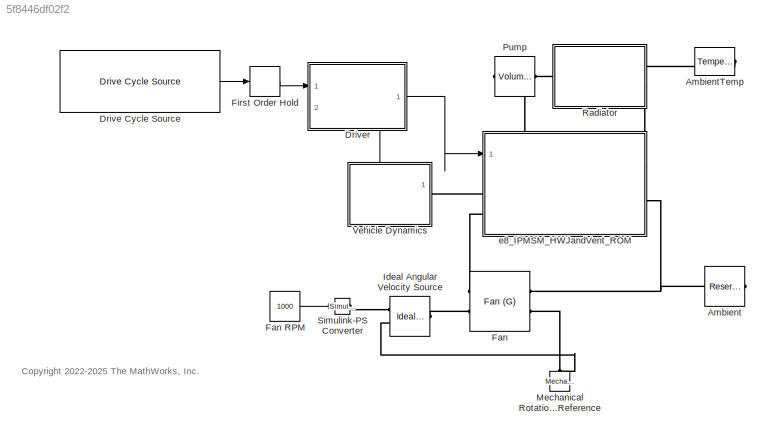
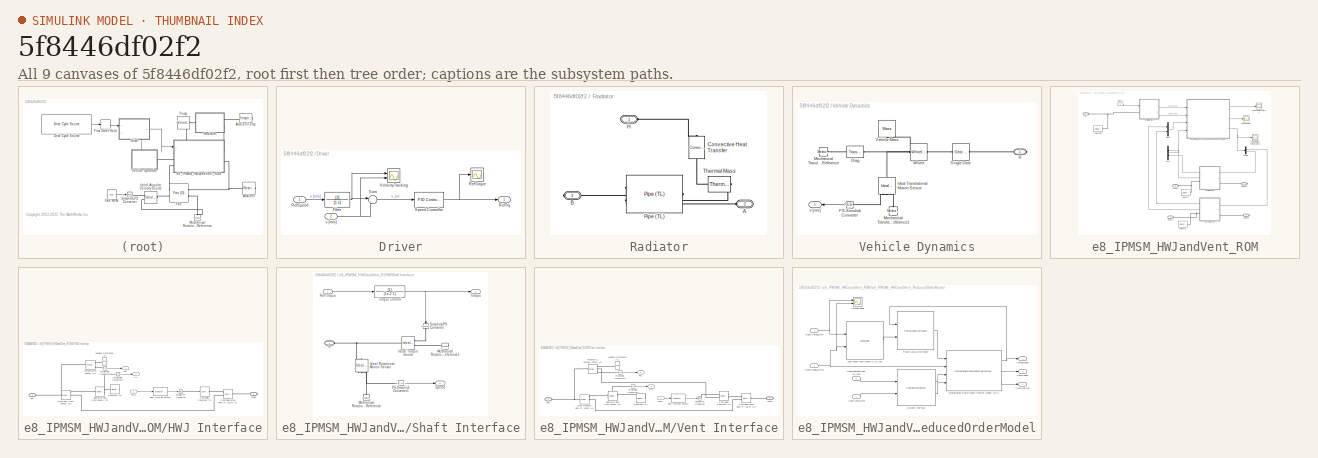
[diagram: thumbnail index - all 9 canvases of the model, root first then tree order]
MODEL slx_5f8446df02f2
KIND model
CONFIG AbsTol = 1e-3
CONFIG EnableMultiTasking = off
CONFIG FixedStep = 1
CONFIG MaxStep = auto
CONFIG MinStep = auto
CONFIG RelTol = 1e-3
CONFIG SampleTimeConstraint = Unconstrained
CONFIG SolverName = VariableStepAuto
CONFIG StartTime = 0.0
CONFIG StopTime = 300
WORKSPACE source: mxarray member
WORKSPACE AdjacencyMat = [0 0 0 0 0 0 0 0 0 0 0 0 ... (15129 elements, 123x123)]
WORKSPACE Banding_Loss_Mat = [0 0 0 0 0 0 0 0 0 0 0 0 ... (2340 elements, 39x60)]
WORKSPACE CapMat = [1e+20 2196.70091586 387.653102799 193.8265514 1962.34710525 387.653102799 193.8265514 1962.34710525 1266.59353814 268.053957132 416.539515956 175.715078 ... (123 elements, 123x1)]
WORKSPACE CoolantArrayIdxs = [20 21 22 23 24 25 26 27 35 36 37 84 ... (19 elements, 19x1)]
WORKSPACE Friction_Loss_Mat = [0 0 0 0 0 0 0 0 0 0 0 0 ... (2340 elements, 39x60)]
WORKSPACE InletCoolIdxs = [37 38]
WORKSPACE Iron_Loss_Rotor_Back_Iron_Mat = [0.0117705351991 0.0198175800092 0.0246057415963 0.0256631766661 0.0240576767285 0.0207771722396 0.0168311502834 0.0133395315761 0.0115512538142 0.0120779594768 0.0143067244555 0.0171516443454 ... (2340 elements, 39x60)]
WORKSPACE Iron_Loss_Rotor_Pole_Mat = [1.45649756865 1.4525095653 1.42942652973 1.39109338754 1.34251579982 1.287439524 1.22885659237 1.16930852698 1.11098913093 1.05484056893 0.999976048068 0.944563732162 ... (2340 elements, 39x60)]
WORKSPACE Iron_Loss_Rotor_Tooth_Mat = [0 0 0 0 0 0 0 0 0 0 0 0 ... (2340 elements, 39x60)]
WORKSPACE Iron_Loss_Stator_Back_Iron_Mat = [38.5419456951 37.774471759 36.7837540443 35.6885758764 34.5272571596 33.3324529178 32.136302555 30.9744032473 29.8863157372 28.879068819 27.8876078248 26.8074662049 ... (2340 elements, 39x60)]
WORKSPACE Iron_Loss_Stator_Tooth_Mat = [42.0610884508 41.0604961882 40.1804594162 39.4285940164 38.704339026 37.9602455604 37.1844153901 36.3902226975 35.6050857317 34.8287245624 34.0007237876 33.0439458619 ... (2340 elements, 39x60)]
WORKSPACE LossDistrForEachType = [0 0 0 0 0 0 0 0 0 0 0 0 ... (2952 elements, 24x123)]
WORKSPACE Magnet_Loss_Mat = [0.0995193918038 0.0928899922278 0.0868628846748 0.0818830115456 0.0774722500184 0.0732395922727 0.0687988836096 0.0636930921801 0.057350395967 0.049600030094 0.0410757744075 0.0326817704515 ... (2340 elements, 39x60)]
WORKSPACE OutletCoolIdxs = [20 107]
WORKSPACE ResMat = [0 2.49009256841 6.64572241429 1000000000 1.39790968864 6.64402802995 1000000000 1.39156082742 1000000000 1000000000 1000000000 1000000000 ... (15129 elements, 123x123)]
WORKSPACE RotorCopperTempCoefResistivity = 0.00393
WORKSPACE Rotor_Cage_Loss_Mat = [0 0 0 0 0 0 0 0 0 0 0 0 ... (2340 elements, 39x60)]
WORKSPACE ShaftTorqueVec = [-287.262157301 -272.268610731 -257.275064161 -242.281517591 -227.287971021 -212.294424451 -197.300877881 -182.307331311 -167.31378474 -152.32023817 -137.3266916 -122.33314503 ... (39 elements, 1x39)]
WORKSPACE Sleeve_Loss_Mat = [0 0 0 0 0 0 0 0 0 0 0 0 ... (2340 elements, 39x60)]
WORKSPACE SpeedVec = [500 661.016949153 822.033898305 983.050847458 1144.06779661 1305.08474576 1466.10169492 1627.11864407 1788.13559322 1949.15254237 2110.16949153 2271.18644068 ... (60 elements, 1x60)]
WORKSPACE StateSpaceND: object (value not decoded)
WORKSPACE StatorCopperTempCoefResistivity = 0.00393
WORKSPACE Stator_Copper_Loss_AC_Mat = [0 0 0 0 0 0 0 0 0 0 0 0 ... (2340 elements, 39x60)]
WORKSPACE Stator_Copper_Loss_Mat = [3925.33912093 3510.19452231 3089.33767218 2711.80000483 2370.99356953 2062.06508217 1781.35176729 1526.02799256 1293.87708107 1083.15658151 892.545254302 720.809889245 ... (2340 elements, 39x60)]
WORKSPACE Stray_Load_Loss_Mat = [0 0 0 0 0 0 0 0 0 0 0 0 ... (2340 elements, 39x60)]
WORKSPACE Stray_Loss_Stator_Iron_Proportion = 0.95
WORKSPACE Tgiven = 20
WORKSPACE TnodesInit = [25 25 25 25 25 25 25 25 25 25 25 25 ... (123 elements, 123x1)]
WORKSPACE TrefRotor = 20
WORKSPACE TrefStator = 20
WORKSPACE Windage_Loss_Mat = [0 0 0 0 0 0 0 0 0 0 0 0 ... (2340 elements, 39x60)]
BLOCK [Reference] Ambient  REF=fl_lib/Gas/Elements/Reservoir (G)
  Ports = [0, 0, 0, 0, 0, 1]
  SourceBlock = fl_lib/Gas/Elements/Reservoir (G)
  SourceProductBaseCode = SS
  SourceType = Reservoir (G)
BLOCK [Reference] AmbientTemp  REF=fl_lib/Thermal/Thermal Sources/Temperature Source
  NameLocation = top
  Ports = [0, 0, 0, 0, 0, 1]
  SourceBlock = fl_lib/Thermal/Thermal Sources/Temperature Source
  SourceProductBaseCode = SS
  SourceType = Temperature Source
BLOCK [Reference] Drive Cycle Source  REF=autolibshared/Drive Cycle Source
  AttributesFormatString = %<cycleVar> (%<tfinal>)
  Ports = [0, 1]
  SourceBlock = autolibshared/Drive Cycle Source
  SourceProductBaseCode = PW,DR,MT,UV,VE
  SourceType = Drive Cycle Source
BLOCK [SubSystem] Driver
  Ports = [2, 1]
  RequestExecContextInheritance = off
BLOCK [TransferFcn] Driver/Filter
  Denominator = [1 1]
BLOCK [Inport] Driver/RefSpeed
BLOCK [Scope] Driver/RefTorque
  Floating = off
  NumInputPorts = 1
  Ports = [1]
  ScopeSpecificationString = Simulink.scopes.TimeScopeBlockCfg('CurrentConfiguration', extmgr.ConfigurationSet(extmgr.Configuration('Core','General UI',true),extmgr.Configuration('Core','Source UI',true),extmgr.Configuration('Sources','WiredSimulink',true,'DataLoggingVariableName','ScopeData3'),extmgr.Configuration('Visuals','Time Domain',true,'SerializedDisplays',{struct('MinYLimReal','-75.45317','MaxYLimReal','152.50001','Y...<+1440ch>
BLOCK [Outport] Driver/RefTrq
BLOCK [Reference] Driver/Speed Controller  REF=slpidlib/PID Controller
  Ports = [1, 1]
  SourceBlock = slpidlib/PID Controller
  SourceProductBaseCode = SL
  SourceType = PID 1dof
BLOCK [Sum] Driver/Sum
  Inputs = |+-
  Ports = [2, 1]
BLOCK [Scope] Driver/VelocityTracking
  Floating = off
  NumInputPorts = 2
  Ports = [2]
  ScopeSpecificationString = Simulink.scopes.TimeScopeBlockCfg('CurrentConfiguration', extmgr.ConfigurationSet(extmgr.Configuration('Core','General UI',true),extmgr.Configuration('Core','Source UI',true),extmgr.Configuration('Sources','WiredSimulink',true,'DataLoggingVariableName','ScopeData2'),extmgr.Configuration('Visuals','Time Domain',true,'SerializedDisplays',{struct('MinYLimReal','-1.69506','MaxYLimReal','15.25554','YLa...<+1452ch>
BLOCK [Inport] Driver/v [m//s]
  Port = 2
BLOCK [Reference] Fan  REF=SimscapeFluids_lib/Gas/Turbomachinery/Fan (G)
  Ports = [0, 0, 0, 0, 0, 2, 2]
  SourceBlock = SimscapeFluids_lib/Gas/Turbomachinery/Fan (G)
  SourceProductBaseCode = SH
  SourceType = Fan (G)
BLOCK [Constant] Fan RPM
  Value = 1000
BLOCK [FirstOrderHold] First Order Hold
  ErrorTolerance = inf
BLOCK [Reference] Ideal Angular Velocity Source  REF=fl_lib/Mechanical/Mechanical Sources/Ideal Angular
Velocity Source
  Ports = [0, 0, 0, 0, 0, 1, 2]
  SourceBlock = fl_lib/Mechanical/Mechanical Sources/Ideal Angular\nVelocity Source
  SourceProductBaseCode = SS
  SourceType = Ideal Angular\nVelocity Source
BLOCK [Reference] Mechanical Rotational Reference  REF=fl_lib/Mechanical/Rotational Elements/Mechanical
Rotational Reference
  NameLocation = right
  Ports = [0, 0, 0, 0, 0, 1]
  SourceBlock = fl_lib/Mechanical/Rotational Elements/Mechanical\nRotational Reference
  SourceProductBaseCode = SS
  SourceType = Mechanical\nRotational Reference
BLOCK [Reference] Pump  REF=fl_lib/Thermal Liquid/Sources/Volumetric Flow Rate
Source (TL)
  NameLocation = top
  Ports = [0, 0, 0, 0, 0, 1, 1]
  SourceBlock = fl_lib/Thermal Liquid/Sources/Volumetric Flow Rate\nSource (TL)
  SourceProductBaseCode = SS
  SourceType = Volumetric Flow Rate\nSource (TL)
BLOCK [SubSystem] Radiator
  NameLocation = top
  Ports = [0, 0, 0, 0, 0, 2, 1]
  RequestExecContextInheritance = off
BLOCK [PMIOPort] Radiator/A
  NameLocation = top
  Port = 2
  Side = Left
BLOCK [PMIOPort] Radiator/B
  NameLocation = top
  Port = 3
  Side = Right
BLOCK [Reference] Radiator/Convective Heat Transfer  REF=fl_lib/Thermal/Thermal Elements/Convective Heat
Transfer
  NameLocation = right
  Ports = [0, 0, 0, 0, 0, 1, 1]
  SourceBlock = fl_lib/Thermal/Thermal Elements/Convective Heat\nTransfer
  SourceProductBaseCode = SS
  SourceType = Convective Heat\nTransfer
BLOCK [PMIOPort] Radiator/H
  NameLocation = top
  Side = Left
BLOCK [Reference] Radiator/Pipe (TL)  REF=fl_lib/Thermal Liquid/Elements/Pipe (TL)
  NameLocation = top
  Ports = [0, 0, 0, 0, 0, 2, 1]
  SourceBlock = fl_lib/Thermal Liquid/Elements/Pipe (TL)
  SourceProductBaseCode = SS
  SourceType = Pipe (TL)
BLOCK [Reference] Radiator/Thermal Mass  REF=fl_lib/Thermal/Thermal Elements/Thermal Mass
  NameLocation = top
  Ports = [0, 0, 0, 0, 0, 1]
  SourceBlock = fl_lib/Thermal/Thermal Elements/Thermal Mass
  SourceProductBaseCode = SS
  SourceType = Thermal Mass
BLOCK [Reference] Simulink-PS Converter  REF=nesl_utility/Simulink-PS
Converter
  Ports = [1, 0, 0, 0, 0, 0, 1]
  SourceBlock = nesl_utility/Simulink-PS\nConverter
  SourceProductBaseCode = PW,SS
  SourceType = Simulink-PS\nConverter
BLOCK [SubSystem] Vehicle Dynamics
  PortSchema = {"entries":[{"content":{"sides":[{"content":{"connectorIds":["Out1"]},"type":"ConnectorPlacement.EquallySpacedRectSide","uuid":"47062009-5743-4348-bd08-1dc005009362"},{"content":{"connectorIds":["RConn1"],"side":"RIGHT"},"type":"ConnectorPlacement.EquallySpacedRectSide","uuid":"e584846c-37d6-4d4a-a7bb-9d030c09d6b0"},{"content":{"connectorIds":[],"side":"TOP"},"type":"ConnectorPlacement.EquallySpac...<+243ch>
  Ports = [0, 1, 0, 0, 0, 0, 1]
  RequestExecContextInheritance = off
BLOCK [Reference] Vehicle Dynamics/Drag  REF=fl_lib/Mechanical/Translational
Elements/Translational Damper
  Ports = [0, 0, 0, 0, 0, 1, 1]
  SourceBlock = fl_lib/Mechanical/Translational\nElements/Translational Damper
  SourceProductBaseCode = SS
  SourceType = Translational Damper
BLOCK [Reference] Vehicle Dynamics/Ideal Translational Motion Sensor  REF=fl_lib/Mechanical/Mechanical Sensors/Ideal Translational
Motion Sensor
  NameLocation = left
  Ports = [0, 0, 0, 0, 0, 1, 3]
  SourceBlock = fl_lib/Mechanical/Mechanical Sensors/Ideal Translational\nMotion Sensor
  SourceProductBaseCode = SS
  SourceType = Ideal Translational\nMotion Sensor
BLOCK [Reference] Vehicle Dynamics/Mechanical Translational Reference  REF=fl_lib/Mechanical/Translational
Elements/Mechanical
Translational
Reference
  Ports = [0, 0, 0, 0, 0, 1]
  SourceBlock = fl_lib/Mechanical/Translational\nElements/Mechanical\nTranslational\nReference
  SourceProductBaseCode = SS
  SourceType = Mechanical\nTranslational\nReference
BLOCK [Reference] Vehicle Dynamics/Mechanical Translational Reference1  REF=fl_lib/Mechanical/Translational
Elements/Mechanical
Translational
Reference
  NameLocation = right
  Ports = [0, 0, 0, 0, 0, 1]
  SourceBlock = fl_lib/Mechanical/Translational\nElements/Mechanical\nTranslational\nReference
  SourceProductBaseCode = SS
  SourceType = Mechanical\nTranslational\nReference
BLOCK [Reference] Vehicle Dynamics/PS-Simulink Converter  REF=nesl_utility/PS-Simulink
Converter
  NameLocation = top
  Ports = [0, 1, 0, 0, 0, 1]
  SourceBlock = nesl_utility/PS-Simulink\nConverter
  SourceProductBaseCode = PW,SS
  SourceType = PS-Simulink\nConverter
BLOCK [PMIOPort] Vehicle Dynamics/R
  NameLocation = top
  Side = Right
BLOCK [Reference] Vehicle Dynamics/Single Gear  REF=fl_lib/Mechanical/Mechanisms/Gear Box
  Ports = [0, 0, 0, 0, 0, 1, 1]
  SourceBlock = fl_lib/Mechanical/Mechanisms/Gear Box
  SourceProductBaseCode = SS
  SourceType = Gear Box
BLOCK [Reference] Vehicle Dynamics/Vehicle Mass  REF=fl_lib/Mechanical/Translational
Elements/Mass
  NameLocation = left
  Ports = [0, 0, 0, 0, 0, 1]
  SourceBlock = fl_lib/Mechanical/Translational\nElements/Mass
  SourceProductBaseCode = SS
  SourceType = Mass
BLOCK [Reference] Vehicle Dynamics/Wheel  REF=fl_lib/Mechanical/Mechanisms/Wheel and Axle
  Ports = [0, 0, 0, 0, 0, 1, 1]
  SourceBlock = fl_lib/Mechanical/Mechanisms/Wheel and Axle
  SourceProductBaseCode = SS
  SourceType = Wheel and Axle
BLOCK [Outport] Vehicle Dynamics/v [m//s]
  NameLocation = top
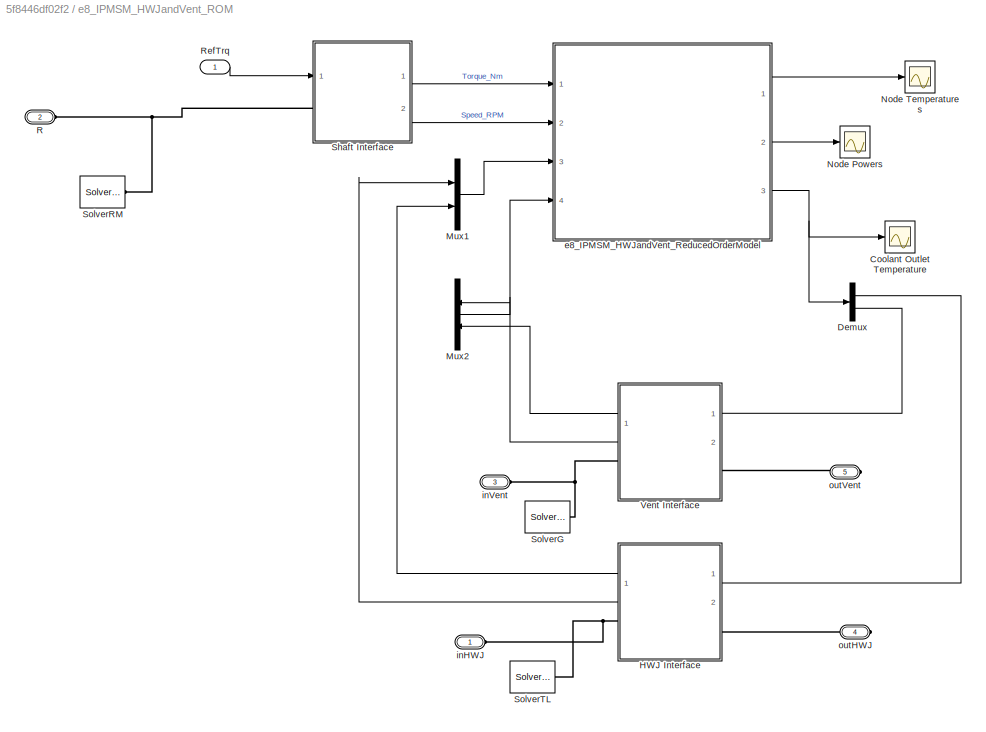
BLOCK [SubSystem] e8_IPMSM_HWJandVent_ROM
  PortSchema = {"entries":[{"content":{"sides":[{"content":{"connectorIds":["LConn1","In1","LConn2","LConn3"]},"type":"ConnectorPlacement.EquallySpacedRectSide","uuid":"cefdaf80-ea7f-4720-b8ad-afd2aa86ff21"},{"content":{"connectorIds":["RConn1","RConn2"],"side":"RIGHT"},"type":"ConnectorPlacement.EquallySpacedRectSide","uuid":"da03b82d-542b-4366-9583-37ca822c776b"},{"content":{"connectorIds":[],"side":"TOP"},"ty...<+278ch>
  Ports = [1, 0, 0, 0, 0, 3, 2]
  RequestExecContextInheritance = off
BLOCK [Scope] e8_IPMSM_HWJandVent_ROM/Coolant Outlet Temperature
  Floating = off
  NumInputPorts = 1
  Ports = [1]
  ScopeSpecificationString = Simulink.scopes.TimeScopeBlockCfg('CurrentConfiguration', extmgr.ConfigurationSet(extmgr.Configuration('Core','General UI',true),extmgr.Configuration('Core','Source UI',true),extmgr.Configuration('Sources','WiredSimulink',true),extmgr.Configuration('Visuals','Time Domain',true,'SerializedDisplays',{struct('MinYLimReal','23.88899','MaxYLimReal','28.9213','YLabelReal','','MinYLimMag','23.88899','Max...<+1462ch>
BLOCK [Demux] e8_IPMSM_HWJandVent_ROM/Demux
  Outputs = 2
  Ports = [1, 2]
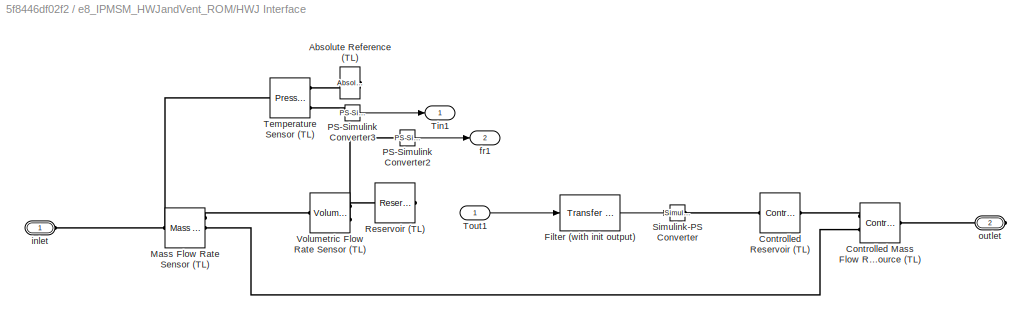
BLOCK [SubSystem] e8_IPMSM_HWJandVent_ROM/HWJ Interface
  PortSchema = {"entries":[{"content":{"sides":[{"content":{"connectorIds":["Out1","Out2","LConn1"]},"type":"ConnectorPlacement.EquallySpacedRectSide","uuid":"a0734607-c8e3-4baa-99d0-f684b459279a"},{"content":{"connectorIds":["In1","RConn1"],"side":"RIGHT"},"type":"ConnectorPlacement.EquallySpacedRectSide","uuid":"b656feb5-3093-4bd9-8bf1-21827cdeeded"},{"content":{"connectorIds":[],"side":"TOP"},"type":"Connecto...<+265ch>
  Ports = [1, 2, 0, 0, 0, 1, 1]
  RequestExecContextInheritance = off
BLOCK [Reference] e8_IPMSM_HWJandVent_ROM/HWJ Interface/Absolute Reference (TL)  REF=fl_lib/Thermal Liquid/Elements/Absolute Reference
(TL)
  NameLocation = top
  Ports = [0, 0, 0, 0, 0, 1]
  SourceBlock = fl_lib/Thermal Liquid/Elements/Absolute Reference\n(TL)
  SourceProductBaseCode = SS
  SourceType = Absolute Reference\n(TL)
BLOCK [Reference] e8_IPMSM_HWJandVent_ROM/HWJ Interface/Controlled Mass Flow Rate Source (TL)  REF=fl_lib/Thermal Liquid/Sources/Controlled Mass Flow
Rate Source (TL)
  Ports = [0, 0, 0, 0, 0, 2, 1]
  SourceBlock = fl_lib/Thermal Liquid/Sources/Controlled Mass Flow\nRate Source (TL)
  SourceProductBaseCode = SS
  SourceType = Controlled Mass Flow\nRate Source (TL)
BLOCK [Reference] e8_IPMSM_HWJandVent_ROM/HWJ Interface/Controlled Reservoir (TL)  REF=fl_lib/Thermal Liquid/Elements/Controlled Reservoir
(TL)
  Ports = [0, 0, 0, 0, 0, 1, 1]
  SourceBlock = fl_lib/Thermal Liquid/Elements/Controlled Reservoir\n(TL)
  SourceProductBaseCode = SS
  SourceType = Controlled Reservoir\n(TL)
BLOCK [Reference] e8_IPMSM_HWJandVent_ROM/HWJ Interface/Filter (with init output)  REF=simulink_extras/Additional
Linear/Transfer Fcn
(with initial outputs)
  Ports = [1, 1]
  SourceBlock = simulink_extras/Additional\nLinear/Transfer Fcn\n(with initial outputs)
  SourceProductBaseCode = SL
  SourceType = Transfer Function with Initial Outputs
BLOCK [Reference] e8_IPMSM_HWJandVent_ROM/HWJ Interface/Mass Flow Rate Sensor (TL)  REF=fl_lib/Thermal Liquid/Sensors/Mass & Energy Flow
Rate Sensor (TL)
  Ports = [0, 0, 0, 0, 0, 1, 3]
  SourceBlock = fl_lib/Thermal Liquid/Sensors/Mass & Energy Flow\nRate Sensor (TL)
  SourceProductBaseCode = SS
  SourceType = Mass & Energy Flow\nRate Sensor (TL)
BLOCK [Reference] e8_IPMSM_HWJandVent_ROM/HWJ Interface/PS-Simulink Converter2  REF=nesl_utility/PS-Simulink
Converter
  Ports = [0, 1, 0, 0, 0, 1]
  SourceBlock = nesl_utility/PS-Simulink\nConverter
  SourceProductBaseCode = PW,SS
  SourceType = PS-Simulink\nConverter
BLOCK [Reference] e8_IPMSM_HWJandVent_ROM/HWJ Interface/PS-Simulink Converter3  REF=nesl_utility/PS-Simulink
Converter
  Ports = [0, 1, 0, 0, 0, 1]
  SourceBlock = nesl_utility/PS-Simulink\nConverter
  SourceProductBaseCode = PW,SS
  SourceType = PS-Simulink\nConverter
BLOCK [Reference] e8_IPMSM_HWJandVent_ROM/HWJ Interface/Reservoir (TL)  REF=fl_lib/Thermal Liquid/Elements/Reservoir (TL)
  NameLocation = top
  Ports = [0, 0, 0, 0, 0, 1]
  SourceBlock = fl_lib/Thermal Liquid/Elements/Reservoir (TL)
  SourceProductBaseCode = SS
  SourceType = Reservoir (TL)
BLOCK [Reference] e8_IPMSM_HWJandVent_ROM/HWJ Interface/Simulink-PS Converter  REF=nesl_utility/Simulink-PS
Converter
  Ports = [1, 0, 0, 0, 0, 0, 1]
  SourceBlock = nesl_utility/Simulink-PS\nConverter
  SourceProductBaseCode = PW,SS
  SourceType = Simulink-PS\nConverter
BLOCK [Reference] e8_IPMSM_HWJandVent_ROM/HWJ Interface/Temperature Sensor (TL)  REF=fl_lib/Thermal Liquid/Sensors/Pressure &
Temperature Sensor
(TL)
  Ports = [0, 0, 0, 0, 0, 1, 3]
  SourceBlock = fl_lib/Thermal Liquid/Sensors/Pressure &\nTemperature Sensor\n(TL)
  SourceProductBaseCode = SS
  SourceType = Pressure &\nTemperature Sensor\n(TL)
BLOCK [Outport] e8_IPMSM_HWJandVent_ROM/HWJ Interface/Tin1
BLOCK [Inport] e8_IPMSM_HWJandVent_ROM/HWJ Interface/Tout1
BLOCK [Reference] e8_IPMSM_HWJandVent_ROM/HWJ Interface/Volumetric Flow Rate Sensor (TL)  REF=fl_lib/Thermal Liquid/Sensors/Volumetric Flow Rate
Sensor (TL)
  Ports = [0, 0, 0, 0, 0, 1, 2]
  SourceBlock = fl_lib/Thermal Liquid/Sensors/Volumetric Flow Rate\nSensor (TL)
  SourceProductBaseCode = SS
  SourceType = Volumetric Flow Rate\nSensor (TL)
BLOCK [Outport] e8_IPMSM_HWJandVent_ROM/HWJ Interface/fr1
  Port = 2
BLOCK [PMIOPort] e8_IPMSM_HWJandVent_ROM/HWJ Interface/inlet
  Side = Left
BLOCK [PMIOPort] e8_IPMSM_HWJandVent_ROM/HWJ Interface/outlet
  Port = 2
  Side = Right
BLOCK [Mux] e8_IPMSM_HWJandVent_ROM/Mux1
  DisplayOption = bar
  Inputs = 2
  Ports = [2, 1]
BLOCK [Mux] e8_IPMSM_HWJandVent_ROM/Mux2
  DisplayOption = bar
  Inputs = 2
  Ports = [2, 1]
BLOCK [Scope] e8_IPMSM_HWJandVent_ROM/Node Powers
  Floating = off
  NumInputPorts = 1
  Ports = [1]
  ScopeSpecificationString = Simulink.scopes.TimeScopeBlockCfg('CurrentConfiguration', extmgr.ConfigurationSet(extmgr.Configuration('Core','General UI',true),extmgr.Configuration('Core','Source UI',true),extmgr.Configuration('Sources','WiredSimulink',true),extmgr.Configuration('Visuals','Time Domain',true,'SerializedDisplays',{struct('MinYLimReal','-42074306.67158','MaxYLimReal','4675062.9077','YLabelReal','','MinYLimMag','  ...<+6919ch>
BLOCK [Scope] e8_IPMSM_HWJandVent_ROM/Node Temperatures
  Floating = off
  NumInputPorts = 1
  Ports = [1]
  ScopeSpecificationString = Simulink.scopes.TimeScopeBlockCfg('CurrentConfiguration', extmgr.ConfigurationSet(extmgr.Configuration('Core','General UI',true),extmgr.Configuration('Core','Source UI',true),extmgr.Configuration('Sources','WiredSimulink',true,'DataLoggingVariableName','ScopeData1'),extmgr.Configuration('Visuals','Time Domain',true,'SerializedDisplays',{struct('MinYLimReal','20.91354','MaxYLimReal','40.90017','YLa...<+1468ch>
BLOCK [PMIOPort] e8_IPMSM_HWJandVent_ROM/R
  Port = 2
  Side = Left
BLOCK [Inport] e8_IPMSM_HWJandVent_ROM/RefTrq
BLOCK [SubSystem] e8_IPMSM_HWJandVent_ROM/Shaft Interface
  Ports = [1, 2, 0, 0, 0, 1]
  RequestExecContextInheritance = off
BLOCK [Reference] e8_IPMSM_HWJandVent_ROM/Shaft Interface/Ideal Rotational Motion Sensor  REF=fl_lib/Mechanical/Mechanical Sensors/Ideal Rotational
Motion Sensor
  NameLocation = left
  Ports = [0, 0, 0, 0, 0, 1, 3]
  SourceBlock = fl_lib/Mechanical/Mechanical Sensors/Ideal Rotational\nMotion Sensor
  SourceProductBaseCode = SS
  SourceType = Ideal Rotational\nMotion Sensor
BLOCK [Reference] e8_IPMSM_HWJandVent_ROM/Shaft Interface/Ideal Torque Source  REF=fl_lib/Mechanical/Mechanical Sources/Ideal Torque Source
  Ports = [0, 0, 0, 0, 0, 1, 2]
  SourceBlock = fl_lib/Mechanical/Mechanical Sources/Ideal Torque Source
  SourceProductBaseCode = SS
  SourceType = Ideal Torque Source
BLOCK [Reference] e8_IPMSM_HWJandVent_ROM/Shaft Interface/Mechanical Rotational Reference  REF=fl_lib/Mechanical/Rotational Elements/Mechanical
Rotational Reference
  NameLocation = right
  Ports = [0, 0, 0, 0, 0, 1]
  SourceBlock = fl_lib/Mechanical/Rotational Elements/Mechanical\nRotational Reference
  SourceProductBaseCode = SS
  SourceType = Mechanical\nRotational Reference
BLOCK [Reference] e8_IPMSM_HWJandVent_ROM/Shaft Interface/Mechanical Rotational Reference1  REF=fl_lib/Mechanical/Rotational Elements/Mechanical
Rotational Reference
  NameLocation = top
  Ports = [0, 0, 0, 0, 0, 1]
  SourceBlock = fl_lib/Mechanical/Rotational Elements/Mechanical\nRotational Reference
  SourceProductBaseCode = SS
  SourceType = Mechanical\nRotational Reference
BLOCK [Reference] e8_IPMSM_HWJandVent_ROM/Shaft Interface/PS-Simulink Converter1  REF=nesl_utility/PS-Simulink
Converter
  Ports = [0, 1, 0, 0, 0, 1]
  SourceBlock = nesl_utility/PS-Simulink\nConverter
  SourceProductBaseCode = PW,SS
  SourceType = PS-Simulink\nConverter
BLOCK [PMIOPort] e8_IPMSM_HWJandVent_ROM/Shaft Interface/R
  Side = Left
BLOCK [Inport] e8_IPMSM_HWJandVent_ROM/Shaft Interface/RefTorque
BLOCK [Reference] e8_IPMSM_HWJandVent_ROM/Shaft Interface/Simulink-PS Converter  REF=nesl_utility/Simulink-PS
Converter
  NameLocation = left
  Ports = [1, 0, 0, 0, 0, 0, 1]
  SourceBlock = nesl_utility/Simulink-PS\nConverter
  SourceProductBaseCode = PW,SS
  SourceType = Simulink-PS\nConverter
BLOCK [Outport] e8_IPMSM_HWJandVent_ROM/Shaft Interface/Speed
  Port = 2
BLOCK [Outport] e8_IPMSM_HWJandVent_ROM/Shaft Interface/Torque
BLOCK [TransferFcn] e8_IPMSM_HWJandVent_ROM/Shaft Interface/Torque Control
  Denominator = [1e-2 1]
BLOCK [Reference] e8_IPMSM_HWJandVent_ROM/SolverG  REF=nesl_utility/Solver
Configuration
  Ports = [0, 0, 0, 0, 0, 0, 1]
  SourceBlock = nesl_utility/Solver\nConfiguration
  SourceProductBaseCode = PW,SS
  SourceType = Solver\nConfiguration
BLOCK [Reference] e8_IPMSM_HWJandVent_ROM/SolverRM  REF=nesl_utility/Solver
Configuration
  Ports = [0, 0, 0, 0, 0, 0, 1]
  SourceBlock = nesl_utility/Solver\nConfiguration
  SourceProductBaseCode = PW,SS
  SourceType = Solver\nConfiguration
BLOCK [Reference] e8_IPMSM_HWJandVent_ROM/SolverTL  REF=nesl_utility/Solver
Configuration
  Ports = [0, 0, 0, 0, 0, 0, 1]
  SourceBlock = nesl_utility/Solver\nConfiguration
  SourceProductBaseCode = PW,SS
  SourceType = Solver\nConfiguration
BLOCK [SubSystem] e8_IPMSM_HWJandVent_ROM/Vent Interface
  PortSchema = {"entries":[{"content":{"sides":[{"content":{"connectorIds":["Out1","Out2","LConn1"]},"type":"ConnectorPlacement.EquallySpacedRectSide","uuid":"a0734607-c8e3-4baa-99d0-f684b459279a"},{"content":{"connectorIds":["In1","RConn1"],"side":"RIGHT"},"type":"ConnectorPlacement.EquallySpacedRectSide","uuid":"b656feb5-3093-4bd9-8bf1-21827cdeeded"},{"content":{"connectorIds":[],"side":"TOP"},"type":"Connecto...<+265ch>
  Ports = [1, 2, 0, 0, 0, 1, 1]
  RequestExecContextInheritance = off
BLOCK [Reference] e8_IPMSM_HWJandVent_ROM/Vent Interface/Absolute Reference (G)  REF=fl_lib/Gas/Elements/Absolute Reference
(G)
  NameLocation = top
  Ports = [0, 0, 0, 0, 0, 1]
  SourceBlock = fl_lib/Gas/Elements/Absolute Reference\n(G)
  SourceProductBaseCode = SS
  SourceType = Absolute Reference\n(G)
BLOCK [Reference] e8_IPMSM_HWJandVent_ROM/Vent Interface/Controlled Mass Flow Rate Source (G)  REF=fl_lib/Gas/Sources/Controlled Mass Flow
Rate Source (G)
  Ports = [0, 0, 0, 0, 0, 2, 1]
  SourceBlock = fl_lib/Gas/Sources/Controlled Mass Flow\nRate Source (G)
  SourceProductBaseCode = SS
  SourceType = Controlled Mass Flow\nRate Source (G)
BLOCK [Reference] e8_IPMSM_HWJandVent_ROM/Vent Interface/Controlled Reservoir (G)  REF=fl_lib/Gas/Elements/Controlled Reservoir
(G)
  NameLocation = top
  Ports = [0, 0, 0, 0, 0, 1, 2]
  SourceBlock = fl_lib/Gas/Elements/Controlled Reservoir\n(G)
  SourceProductBaseCode = SS
  SourceType = Controlled Reservoir\n(G)
BLOCK [Reference] e8_IPMSM_HWJandVent_ROM/Vent Interface/Filter (with init output)  REF=simulink_extras/Additional
Linear/Transfer Fcn
(with initial outputs)
  Ports = [1, 1]
  SourceBlock = simulink_extras/Additional\nLinear/Transfer Fcn\n(with initial outputs)
  SourceProductBaseCode = SL
  SourceType = Transfer Function with Initial Outputs
BLOCK [Reference] e8_IPMSM_HWJandVent_ROM/Vent Interface/Mass & Energy Flow Rate Sensor (G)  REF=fl_lib/Gas/Sensors/Mass & Energy Flow
Rate Sensor (G)
  Ports = [0, 0, 0, 0, 0, 1, 3]
  SourceBlock = fl_lib/Gas/Sensors/Mass & Energy Flow\nRate Sensor (G)
  SourceProductBaseCode = SS
  SourceType = Mass & Energy Flow\nRate Sensor (G)
BLOCK [Reference] e8_IPMSM_HWJandVent_ROM/Vent Interface/PS-Simulink Converter2  REF=nesl_utility/PS-Simulink
Converter
  Ports = [0, 1, 0, 0, 0, 1]
  SourceBlock = nesl_utility/PS-Simulink\nConverter
  SourceProductBaseCode = PW,SS
  SourceType = PS-Simulink\nConverter
BLOCK [Reference] e8_IPMSM_HWJandVent_ROM/Vent Interface/PS-Simulink Converter3  REF=nesl_utility/PS-Simulink
Converter
  Ports = [0, 1, 0, 0, 0, 1]
  SourceBlock = nesl_utility/PS-Simulink\nConverter
  SourceProductBaseCode = PW,SS
  SourceType = PS-Simulink\nConverter
BLOCK [Reference] e8_IPMSM_HWJandVent_ROM/Vent Interface/Pressure & Temperature Sensor (G)  REF=fl_lib/Gas/Sensors/Pressure &
Temperature Sensor
(G)
  Ports = [0, 0, 0, 0, 0, 1, 3]
  SourceBlock = fl_lib/Gas/Sensors/Pressure &\nTemperature Sensor\n(G)
  SourceProductBaseCode = SS
  SourceType = Pressure &\nTemperature Sensor\n(G)
BLOCK [Reference] e8_IPMSM_HWJandVent_ROM/Vent Interface/Reservoir (G)  REF=fl_lib/Gas/Elements/Reservoir (G)
  NameLocation = top
  Ports = [0, 0, 0, 0, 0, 1]
  SourceBlock = fl_lib/Gas/Elements/Reservoir (G)
  SourceProductBaseCode = SS
  SourceType = Reservoir (G)
BLOCK [Reference] e8_IPMSM_HWJandVent_ROM/Vent Interface/Simulink-PS Converter  REF=nesl_utility/Simulink-PS
Converter
  Ports = [1, 0, 0, 0, 0, 0, 1]
  SourceBlock = nesl_utility/Simulink-PS\nConverter
  SourceProductBaseCode = PW,SS
  SourceType = Simulink-PS\nConverter
BLOCK [Outport] e8_IPMSM_HWJandVent_ROM/Vent Interface/Tin1
BLOCK [Inport] e8_IPMSM_HWJandVent_ROM/Vent Interface/Tout1
BLOCK [Reference] e8_IPMSM_HWJandVent_ROM/Vent Interface/Volumetric Flow Rate Sensor (G)  REF=fl_lib/Gas/Sensors/Volumetric Flow Rate
Sensor (G)
  NameLocation = top
  Ports = [0, 0, 0, 0, 0, 1, 2]
  SourceBlock = fl_lib/Gas/Sensors/Volumetric Flow Rate\nSensor (G)
  SourceProductBaseCode = SS
  SourceType = Volumetric Flow Rate\nSensor (G)
BLOCK [Outport] e8_IPMSM_HWJandVent_ROM/Vent Interface/fr1
  Port = 2
BLOCK [PMIOPort] e8_IPMSM_HWJandVent_ROM/Vent Interface/inlet
  Side = Left
BLOCK [PMIOPort] e8_IPMSM_HWJandVent_ROM/Vent Interface/outlet
  Port = 2
  Side = Right
BLOCK [SubSystem] e8_IPMSM_HWJandVent_ROM/e8_IPMSM_HWJandVent_ReducedOrderModel
  Ports = [4, 3]
  RequestExecContextInheritance = off
BLOCK [Reference] e8_IPMSM_HWJandVent_ROM/e8_IPMSM_HWJandVent_ReducedOrderModel/Coolant Interface  REF=mcadROM_lib/CoolantDemuxMux
  Ports = [2, 2]
  SourceBlock = mcadROM_lib/CoolantDemuxMux
BLOCK [Inport] e8_IPMSM_HWJandVent_ROM/e8_IPMSM_HWJandVent_ReducedOrderModel/HousingWaterJacket_Inlet
  Port = 3
BLOCK [Reference] e8_IPMSM_HWJandVent_ROM/e8_IPMSM_HWJandVent_ReducedOrderModel/Interpolated State-Space Thermal Model (LPV)  REF=mcadROM_lib/InterpolatedStateSpaceThermalModel (LPV)
  Ports = [4, 3]
  SourceBlock = mcadROM_lib/InterpolatedStateSpaceThermalModel (LPV)
BLOCK [Reference] e8_IPMSM_HWJandVent_ROM/e8_IPMSM_HWJandVent_ReducedOrderModel/Loss Maps from Motor-CAD Lab  REF=mcadROM_lib/LossMaps
  Ports = [2, 1]
  SourceBlock = mcadROM_lib/LossMaps
BLOCK [Outport] e8_IPMSM_HWJandVent_ROM/e8_IPMSM_HWJandVent_ReducedOrderModel/PowNodes
  Port = 2
BLOCK [Reference] e8_IPMSM_HWJandVent_ROM/e8_IPMSM_HWJandVent_ReducedOrderModel/Power Loss Distributor  REF=mcadROM_lib/PowerLossDistributor
  Ports = [2, 1]
  SourceBlock = mcadROM_lib/PowerLossDistributor
BLOCK [Inport] e8_IPMSM_HWJandVent_ROM/e8_IPMSM_HWJandVent_ReducedOrderModel/ShaftSpeed_RPM
  Port = 2
BLOCK [Inport] e8_IPMSM_HWJandVent_ROM/e8_IPMSM_HWJandVent_ReducedOrderModel/ShaftTorque_Nm
BLOCK [Outport] e8_IPMSM_HWJandVent_ROM/e8_IPMSM_HWJandVent_ReducedOrderModel/TcoolOutVec
  Port = 3
BLOCK [Outport] e8_IPMSM_HWJandVent_ROM/e8_IPMSM_HWJandVent_ReducedOrderModel/TempNodes
BLOCK [Scope] e8_IPMSM_HWJandVent_ROM/e8_IPMSM_HWJandVent_ReducedOrderModel/TorqueSpeed
  Floating = off
  NumInputPorts = 2
  Ports = [2]
  ScopeSpecificationString = Simulink.scopes.TimeScopeBlockCfg('CurrentConfiguration', extmgr.ConfigurationSet(extmgr.Configuration('Core','General UI',true),extmgr.Configuration('Core','Source UI',true),extmgr.Configuration('Sources','WiredSimulink',true,'DataLoggingVariableName','ScopeData1'),extmgr.Configuration('Visuals','Time Domain',true,'SerializedDisplays',{struct('MinYLimReal','-103.42293','MaxYLimReal','113.69335','...<+2052ch>
BLOCK [Inport] e8_IPMSM_HWJandVent_ROM/e8_IPMSM_HWJandVent_ReducedOrderModel/Ventilated_Inlet
  Port = 4
BLOCK [PMIOPort] e8_IPMSM_HWJandVent_ROM/inHWJ
  Side = Left
BLOCK [PMIOPort] e8_IPMSM_HWJandVent_ROM/inVent
  Port = 3
  Side = Left
BLOCK [PMIOPort] e8_IPMSM_HWJandVent_ROM/outHWJ
  Port = 4
  Side = Right
BLOCK [PMIOPort] e8_IPMSM_HWJandVent_ROM/outVent
  Port = 5
  Side = Right
ANNOTATION (root): <copyright redacted>
LINE Drive Cycle Source:1 -> First Order Hold:1
NET Driver/Filter:1 -> Driver/Sum:1, Driver/VelocityTracking:1
LINE Driver/RefSpeed:1 -> Driver/Filter:1
NET Driver/Speed Controller:1 -> Driver/RefTorque:1, Driver/RefTrq:1
LINE Driver/Sum:1 -> Driver/Speed Controller:1
NET Driver/v [m//s]:1 -> Driver/Sum:2, Driver/VelocityTracking:2
LINE Driver:1 -> e8_IPMSM_HWJandVent_ROM:1
LINE Fan RPM:1 -> Simulink-PS Converter:1
LINE First Order Hold:1 -> Driver:1
LINE Vehicle Dynamics/PS-Simulink Converter:1 -> Vehicle Dynamics/v [m//s]:1
LINE Vehicle Dynamics:1 -> Driver:2
LINE e8_IPMSM_HWJandVent_ROM/Demux:1 -> e8_IPMSM_HWJandVent_ROM/HWJ Interface:1
LINE e8_IPMSM_HWJandVent_ROM/Demux:2 -> e8_IPMSM_HWJandVent_ROM/Vent Interface:1
LINE e8_IPMSM_HWJandVent_ROM/HWJ Interface/Filter (with init output):1 -> e8_IPMSM_HWJandVent_ROM/HWJ Interface/Simulink-PS Converter:1
LINE e8_IPMSM_HWJandVent_ROM/HWJ Interface/PS-Simulink Converter2:1 -> e8_IPMSM_HWJandVent_ROM/HWJ Interface/fr1:1
LINE e8_IPMSM_HWJandVent_ROM/HWJ Interface/PS-Simulink Converter3:1 -> e8_IPMSM_HWJandVent_ROM/HWJ Interface/Tin1:1
LINE e8_IPMSM_HWJandVent_ROM/HWJ Interface/Tout1:1 -> e8_IPMSM_HWJandVent_ROM/HWJ Interface/Filter (with init output):1
LINE e8_IPMSM_HWJandVent_ROM/HWJ Interface:1 -> e8_IPMSM_HWJandVent_ROM/Mux1:2
LINE e8_IPMSM_HWJandVent_ROM/HWJ Interface:2 -> e8_IPMSM_HWJandVent_ROM/Mux1:1
LINE e8_IPMSM_HWJandVent_ROM/Mux1:1 -> e8_IPMSM_HWJandVent_ROM/e8_IPMSM_HWJandVent_ReducedOrderModel:3
LINE e8_IPMSM_HWJandVent_ROM/Mux2:1 -> e8_IPMSM_HWJandVent_ROM/e8_IPMSM_HWJandVent_ReducedOrderModel:4
LINE e8_IPMSM_HWJandVent_ROM/RefTrq:1 -> e8_IPMSM_HWJandVent_ROM/Shaft Interface:1
LINE e8_IPMSM_HWJandVent_ROM/Shaft Interface/PS-Simulink Converter1:1 -> e8_IPMSM_HWJandVent_ROM/Shaft Interface/Speed:1
LINE e8_IPMSM_HWJandVent_ROM/Shaft Interface/RefTorque:1 -> e8_IPMSM_HWJandVent_ROM/Shaft Interface/Torque Control:1
NET e8_IPMSM_HWJandVent_ROM/Shaft Interface/Torque Control:1 -> e8_IPMSM_HWJandVent_ROM/Shaft Interface/Simulink-PS Converter:1, e8_IPMSM_HWJandVent_ROM/Shaft Interface/Torque:1
LINE e8_IPMSM_HWJandVent_ROM/Shaft Interface:1 -> e8_IPMSM_HWJandVent_ROM/e8_IPMSM_HWJandVent_ReducedOrderModel:1
LINE e8_IPMSM_HWJandVent_ROM/Shaft Interface:2 -> e8_IPMSM_HWJandVent_ROM/e8_IPMSM_HWJandVent_ReducedOrderModel:2
LINE e8_IPMSM_HWJandVent_ROM/Vent Interface/Filter (with init output):1 -> e8_IPMSM_HWJandVent_ROM/Vent Interface/Simulink-PS Converter:1
LINE e8_IPMSM_HWJandVent_ROM/Vent Interface/PS-Simulink Converter2:1 -> e8_IPMSM_HWJandVent_ROM/Vent Interface/fr1:1
LINE e8_IPMSM_HWJandVent_ROM/Vent Interface/PS-Simulink Converter3:1 -> e8_IPMSM_HWJandVent_ROM/Vent Interface/Tin1:1
LINE e8_IPMSM_HWJandVent_ROM/Vent Interface/Tout1:1 -> e8_IPMSM_HWJandVent_ROM/Vent Interface/Filter (with init output):1
LINE e8_IPMSM_HWJandVent_ROM/Vent Interface:1 -> e8_IPMSM_HWJandVent_ROM/Mux2:2
LINE e8_IPMSM_HWJandVent_ROM/Vent Interface:2 -> e8_IPMSM_HWJandVent_ROM/Mux2:1
LINE e8_IPMSM_HWJandVent_ROM/e8_IPMSM_HWJandVent_ReducedOrderModel/Coolant Interface:1 -> e8_IPMSM_HWJandVent_ROM/e8_IPMSM_HWJandVent_ReducedOrderModel/Interpolated State-Space Thermal Model (LPV):3
LINE e8_IPMSM_HWJandVent_ROM/e8_IPMSM_HWJandVent_ReducedOrderModel/Coolant Interface:2 -> e8_IPMSM_HWJandVent_ROM/e8_IPMSM_HWJandVent_ReducedOrderModel/Interpolated State-Space Thermal Model (LPV):4
LINE e8_IPMSM_HWJandVent_ROM/e8_IPMSM_HWJandVent_ReducedOrderModel/HousingWaterJacket_Inlet:1 -> e8_IPMSM_HWJandVent_ROM/e8_IPMSM_HWJandVent_ReducedOrderModel/Coolant Interface:1
NET e8_IPMSM_HWJandVent_ROM/e8_IPMSM_HWJandVent_ReducedOrderModel/Interpolated State-Space Thermal Model (LPV):1 -> e8_IPMSM_HWJandVent_ROM/e8_IPMSM_HWJandVent_ReducedOrderModel/Power Loss Distributor:1, e8_IPMSM_HWJandVent_ROM/e8_IPMSM_HWJandVent_ReducedOrderModel/TempNodes:1
LINE e8_IPMSM_HWJandVent_ROM/e8_IPMSM_HWJandVent_ReducedOrderModel/Interpolated State-Space Thermal Model (LPV):2 -> e8_IPMSM_HWJandVent_ROM/e8_IPMSM_HWJandVent_ReducedOrderModel/PowNodes:1
LINE e8_IPMSM_HWJandVent_ROM/e8_IPMSM_HWJandVent_ReducedOrderModel/Interpolated State-Space Thermal Model (LPV):3 -> e8_IPMSM_HWJandVent_ROM/e8_IPMSM_HWJandVent_ReducedOrderModel/TcoolOutVec:1
LINE e8_IPMSM_HWJandVent_ROM/e8_IPMSM_HWJandVent_ReducedOrderModel/Loss Maps from Motor-CAD Lab:1 -> e8_IPMSM_HWJandVent_ROM/e8_IPMSM_HWJandVent_ReducedOrderModel/Power Loss Distributor:2
LINE e8_IPMSM_HWJandVent_ROM/e8_IPMSM_HWJandVent_ReducedOrderModel/Power Loss Distributor:1 -> e8_IPMSM_HWJandVent_ROM/e8_IPMSM_HWJandVent_ReducedOrderModel/Interpolated State-Space Thermal Model (LPV):1
NET e8_IPMSM_HWJandVent_ROM/e8_IPMSM_HWJandVent_ReducedOrderModel/ShaftSpeed_RPM:1 -> e8_IPMSM_HWJandVent_ROM/e8_IPMSM_HWJandVent_ReducedOrderModel/Interpolated State-Space Thermal Model (LPV):2, e8_IPMSM_HWJandVent_ROM/e8_IPMSM_HWJandVent_ReducedOrderModel/Loss Maps from Motor-CAD Lab:2, e8_IPMSM_HWJandVent_ROM/e8_IPMSM_HWJandVent_ReducedOrderModel/TorqueSpeed:2
NET e8_IPMSM_HWJandVent_ROM/e8_IPMSM_HWJandVent_ReducedOrderModel/ShaftTorque_Nm:1 -> e8_IPMSM_HWJandVent_ROM/e8_IPMSM_HWJandVent_ReducedOrderModel/Loss Maps from Motor-CAD Lab:1, e8_IPMSM_HWJandVent_ROM/e8_IPMSM_HWJandVent_ReducedOrderModel/TorqueSpeed:1
LINE e8_IPMSM_HWJandVent_ROM/e8_IPMSM_HWJandVent_ReducedOrderModel/Ventilated_Inlet:1 -> e8_IPMSM_HWJandVent_ROM/e8_IPMSM_HWJandVent_ReducedOrderModel/Coolant Interface:2
LINE e8_IPMSM_HWJandVent_ROM/e8_IPMSM_HWJandVent_ReducedOrderModel:1 -> e8_IPMSM_HWJandVent_ROM/Node Temperatures:1
LINE e8_IPMSM_HWJandVent_ROM/e8_IPMSM_HWJandVent_ReducedOrderModel:2 -> e8_IPMSM_HWJandVent_ROM/Node Powers:1
NET e8_IPMSM_HWJandVent_ROM/e8_IPMSM_HWJandVent_ReducedOrderModel:3 -> e8_IPMSM_HWJandVent_ROM/Coolant Outlet Temperature:1, e8_IPMSM_HWJandVent_ROM/Demux:1
PNET net1: Ambient:LConn1 -- Fan:LConn1 -- e8_IPMSM_HWJandVent_ROM:RConn2
PLINE AmbientTemp:LConn1 -- Radiator:LConn1
PNET net2: Fan:LConn2 -- Ideal Angular Velocity Source:RConn2 -- Mechanical Rotational Reference:LConn1
PLINE Fan:RConn1 -- e8_IPMSM_HWJandVent_ROM:LConn3
PLINE Fan:RConn2 -- Ideal Angular Velocity Source:LConn1
PLINE Ideal Angular Velocity Source:RConn1 -- Simulink-PS Converter:RConn1
PLINE Pump:LConn1 -- Radiator:RConn1
PLINE Pump:RConn1 -- e8_IPMSM_HWJandVent_ROM:LConn1
PLINE Radiator/A:RConn1 -- Radiator/Pipe (TL):LConn1
PLINE Radiator/B:RConn1 -- Radiator/Pipe (TL):RConn1
PNET net3: Radiator/Convective Heat Transfer:LConn1 -- Radiator/Pipe (TL):LConn2 -- Radiator/Thermal Mass:LConn1
PLINE Radiator/Convective Heat Transfer:RConn1 -- Radiator/H:RConn1
PLINE Radiator:LConn2 -- e8_IPMSM_HWJandVent_ROM:RConn1
PNET net4: Vehicle Dynamics/Drag:LConn1 -- Vehicle Dynamics/Ideal Translational Motion Sensor:LConn1 -- Vehicle Dynamics/Vehicle Mass:LConn1 -- Vehicle Dynamics/Wheel:RConn1
PLINE Vehicle Dynamics/Drag:RConn1 -- Vehicle Dynamics/Mechanical Translational Reference:LConn1
PLINE Vehicle Dynamics/Ideal Translational Motion Sensor:RConn1 -- Vehicle Dynamics/Mechanical Translational Reference1:LConn1
PLINE Vehicle Dynamics/Ideal Translational Motion Sensor:RConn2 -- Vehicle Dynamics/PS-Simulink Converter:LConn1
PLINE Vehicle Dynamics/R:RConn1 -- Vehicle Dynamics/Single Gear:RConn1
PLINE Vehicle Dynamics/Single Gear:LConn1 -- Vehicle Dynamics/Wheel:LConn1
PLINE Vehicle Dynamics:RConn1 -- e8_IPMSM_HWJandVent_ROM:LConn2
PLINE e8_IPMSM_HWJandVent_ROM/HWJ Interface/Absolute Reference (TL):LConn1 -- e8_IPMSM_HWJandVent_ROM/HWJ Interface/Temperature Sensor (TL):RConn1
PLINE e8_IPMSM_HWJandVent_ROM/HWJ Interface/Controlled Mass Flow Rate Source (TL):LConn1 -- e8_IPMSM_HWJandVent_ROM/HWJ Interface/Controlled Reservoir (TL):LConn1
PLINE e8_IPMSM_HWJandVent_ROM/HWJ Interface/Controlled Mass Flow Rate Source (TL):LConn2 -- e8_IPMSM_HWJandVent_ROM/HWJ Interface/Mass Flow Rate Sensor (TL):RConn2
PLINE e8_IPMSM_HWJandVent_ROM/HWJ Interface/Controlled Mass Flow Rate Source (TL):RConn1 -- e8_IPMSM_HWJandVent_ROM/HWJ Interface/outlet:RConn1
PLINE e8_IPMSM_HWJandVent_ROM/HWJ Interface/Controlled Reservoir (TL):RConn1 -- e8_IPMSM_HWJandVent_ROM/HWJ Interface/Simulink-PS Converter:RConn1
PNET net5: e8_IPMSM_HWJandVent_ROM/HWJ Interface/Mass Flow Rate Sensor (TL):LConn1 -- e8_IPMSM_HWJandVent_ROM/HWJ Interface/Temperature Sensor (TL):LConn1 -- e8_IPMSM_HWJandVent_ROM/HWJ Interface/inlet:RConn1
PLINE e8_IPMSM_HWJandVent_ROM/HWJ Interface/Mass Flow Rate Sensor (TL):RConn1 -- e8_IPMSM_HWJandVent_ROM/HWJ Interface/Volumetric Flow Rate Sensor (TL):LConn1
PLINE e8_IPMSM_HWJandVent_ROM/HWJ Interface/PS-Simulink Converter2:LConn1 -- e8_IPMSM_HWJandVent_ROM/HWJ Interface/Volumetric Flow Rate Sensor (TL):RConn2
PLINE e8_IPMSM_HWJandVent_ROM/HWJ Interface/PS-Simulink Converter3:LConn1 -- e8_IPMSM_HWJandVent_ROM/HWJ Interface/Temperature Sensor (TL):RConn3
PLINE e8_IPMSM_HWJandVent_ROM/HWJ Interface/Reservoir (TL):LConn1 -- e8_IPMSM_HWJandVent_ROM/HWJ Interface/Volumetric Flow Rate Sensor (TL):RConn1
PNET net6: e8_IPMSM_HWJandVent_ROM/HWJ Interface:LConn1 -- e8_IPMSM_HWJandVent_ROM/SolverTL:RConn1 -- e8_IPMSM_HWJandVent_ROM/inHWJ:RConn1
PLINE e8_IPMSM_HWJandVent_ROM/HWJ Interface:RConn1 -- e8_IPMSM_HWJandVent_ROM/outHWJ:RConn1
PNET net7: e8_IPMSM_HWJandVent_ROM/R:RConn1 -- e8_IPMSM_HWJandVent_ROM/Shaft Interface:LConn1 -- e8_IPMSM_HWJandVent_ROM/SolverRM:RConn1
PNET net8: e8_IPMSM_HWJandVent_ROM/Shaft Interface/Ideal Rotational Motion Sensor:LConn1 -- e8_IPMSM_HWJandVent_ROM/Shaft Interface/Ideal Torque Source:LConn1 -- e8_IPMSM_HWJandVent_ROM/Shaft Interface/R:RConn1
PLINE e8_IPMSM_HWJandVent_ROM/Shaft Interface/Ideal Rotational Motion Sensor:RConn1 -- e8_IPMSM_HWJandVent_ROM/Shaft Interface/Mechanical Rotational Reference:LConn1
PLINE e8_IPMSM_HWJandVent_ROM/Shaft Interface/Ideal Rotational Motion Sensor:RConn2 -- e8_IPMSM_HWJandVent_ROM/Shaft Interface/PS-Simulink Converter1:LConn1
PLINE e8_IPMSM_HWJandVent_ROM/Shaft Interface/Ideal Torque Source:RConn1 -- e8_IPMSM_HWJandVent_ROM/Shaft Interface/Simulink-PS Converter:RConn1
PLINE e8_IPMSM_HWJandVent_ROM/Shaft Interface/Ideal Torque Source:RConn2 -- e8_IPMSM_HWJandVent_ROM/Shaft Interface/Mechanical Rotational Reference1:LConn1
PNET net9: e8_IPMSM_HWJandVent_ROM/SolverG:RConn1 -- e8_IPMSM_HWJandVent_ROM/Vent Interface:LConn1 -- e8_IPMSM_HWJandVent_ROM/inVent:RConn1
PLINE e8_IPMSM_HWJandVent_ROM/Vent Interface/Absolute Reference (G):LConn1 -- e8_IPMSM_HWJandVent_ROM/Vent Interface/Pressure & Temperature Sensor (G):RConn1
PLINE e8_IPMSM_HWJandVent_ROM/Vent Interface/Controlled Mass Flow Rate Source (G):LConn1 -- e8_IPMSM_HWJandVent_ROM/Vent Interface/Controlled Reservoir (G):LConn1
PLINE e8_IPMSM_HWJandVent_ROM/Vent Interface/Controlled Mass Flow Rate Source (G):LConn2 -- e8_IPMSM_HWJandVent_ROM/Vent Interface/Mass & Energy Flow Rate Sensor (G):RConn2
PLINE e8_IPMSM_HWJandVent_ROM/Vent Interface/Controlled Mass Flow Rate Source (G):RConn1 -- e8_IPMSM_HWJandVent_ROM/Vent Interface/outlet:RConn1
PLINE e8_IPMSM_HWJandVent_ROM/Vent Interface/Controlled Reservoir (G):RConn1 -- e8_IPMSM_HWJandVent_ROM/Vent Interface/Simulink-PS Converter:RConn1
PLINE e8_IPMSM_HWJandVent_ROM/Vent Interface/Controlled Reservoir (G):RConn2 -- e8_IPMSM_HWJandVent_ROM/Vent Interface/Pressure & Temperature Sensor (G):RConn2
PNET net10: e8_IPMSM_HWJandVent_ROM/Vent Interface/Mass & Energy Flow Rate Sensor (G):LConn1 -- e8_IPMSM_HWJandVent_ROM/Vent Interface/Pressure & Temperature Sensor (G):LConn1 -- e8_IPMSM_HWJandVent_ROM/Vent Interface/inlet:RConn1
PLINE e8_IPMSM_HWJandVent_ROM/Vent Interface/Mass & Energy Flow Rate Sensor (G):RConn1 -- e8_IPMSM_HWJandVent_ROM/Vent Interface/Volumetric Flow Rate Sensor (G):LConn1
PLINE e8_IPMSM_HWJandVent_ROM/Vent Interface/PS-Simulink Converter2:LConn1 -- e8_IPMSM_HWJandVent_ROM/Vent Interface/Volumetric Flow Rate Sensor (G):RConn2
PLINE e8_IPMSM_HWJandVent_ROM/Vent Interface/PS-Simulink Converter3:LConn1 -- e8_IPMSM_HWJandVent_ROM/Vent Interface/Pressure & Temperature Sensor (G):RConn3
PLINE e8_IPMSM_HWJandVent_ROM/Vent Interface/Reservoir (G):LConn1 -- e8_IPMSM_HWJandVent_ROM/Vent Interface/Volumetric Flow Rate Sensor (G):RConn1
PLINE e8_IPMSM_HWJandVent_ROM/Vent Interface:RConn1 -- e8_IPMSM_HWJandVent_ROM/outVent:RConn1
note: NET lines group one-source signal fan-out (src -> all destinations, sorted); 1:1 wires keep LINE; PNET lines group multi-terminal physical nets as a canonical sorted terminal list (undirected conserving connections); 2-terminal nets keep the pairwise PLINE form
